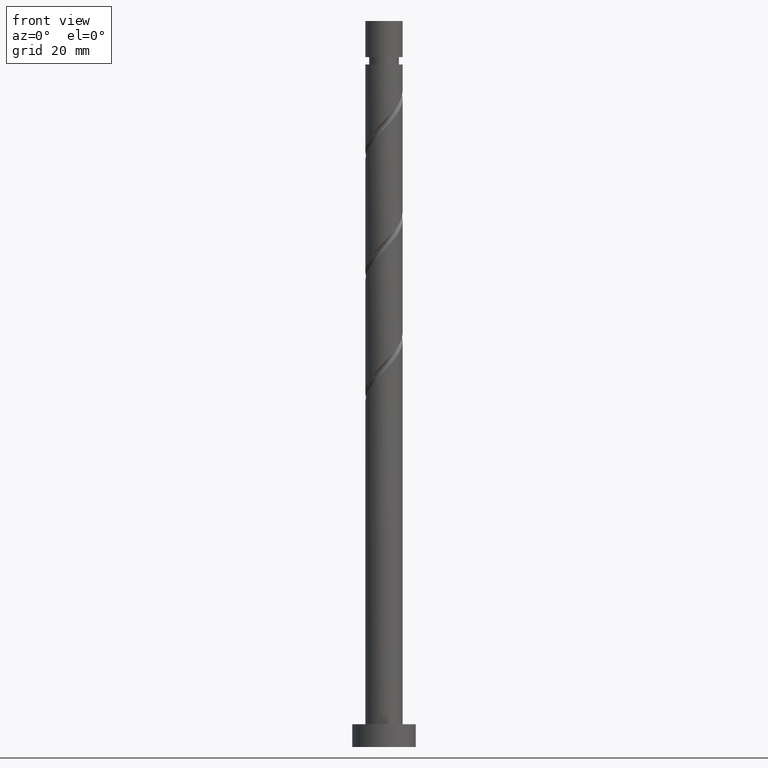
[diagram: clean part render]
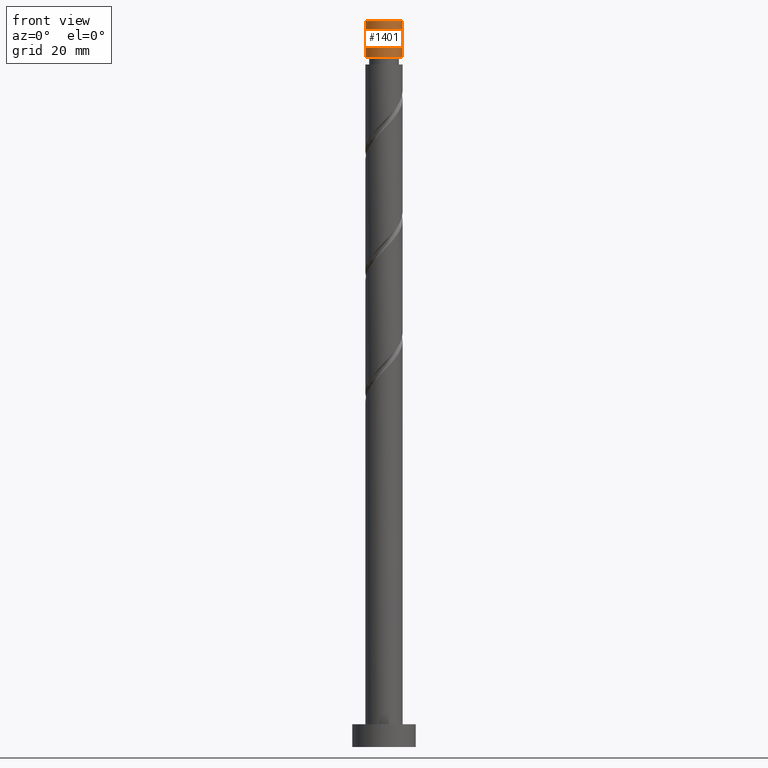
[diagram: same view with one face highlighted and labeled with its STEP entity id]
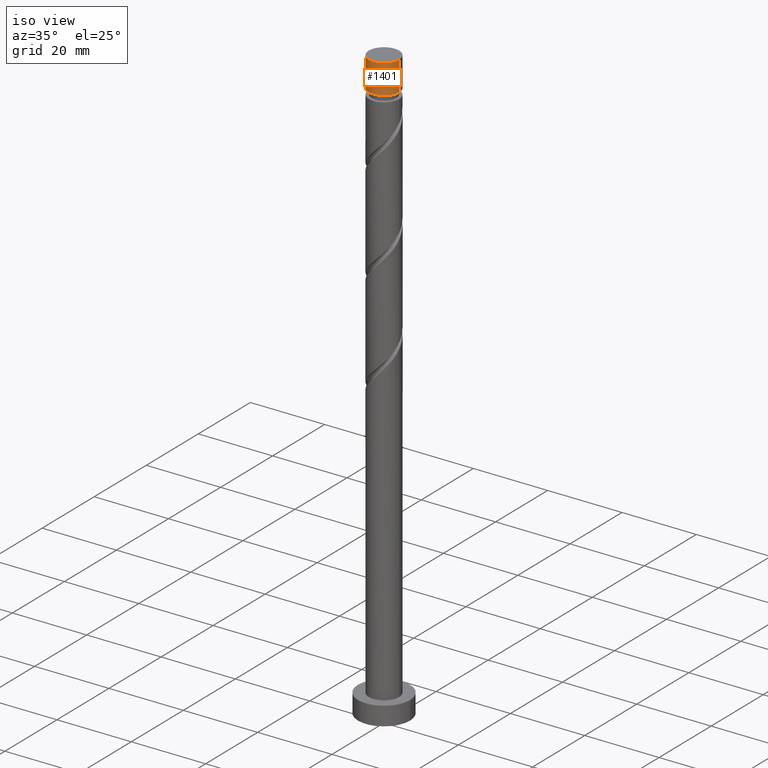
[diagram: same view with one face highlighted and labeled with its STEP entity id]
A machine part, front view. The second image highlights one B-rep face of the part: STEP entity #1401.
A second angle (iso view) of the same face is appended — the face is thin or edge-on in the first view.
In plain terms, the highlighted cylindrical surface (edge-blend (fillet) strip) has radius 4.1 mm, axis along (-0, -0, -1).
Its self-contained STEP definition (entity closure, byte-faithful):
#18 = AXIS2_PLACEMENT_3D ( 'NONE', #159, #1556, #1658 ) ;
#49 = CARTESIAN_POINT ( 'NONE',  ( 4.099999999999999645, 5.021051876504147385E-16, 160.0000000000000000 ) ) ;
#92 = EDGE_CURVE ( 'NONE', #117, #1421, #216, .T. ) ;
#97 = CIRCLE ( 'NONE', #253, 4.099999999999993427 ) ;
#117 = VERTEX_POINT ( 'NONE', #707 ) ;
#133 = DIRECTION ( 'NONE',  ( 1.000000000000000000, 0.000000000000000000, 0.000000000000000000 ) ) ;
#159 = CARTESIAN_POINT ( 'NONE',  ( 0.000000000000000000, 0.000000000000000000, 160.0000000000000000 ) ) ;
#216 = LINE ( 'NONE', #586, #232 ) ;
#232 = VECTOR ( 'NONE', #593, 1000.000000000000000 ) ;
#253 = AXIS2_PLACEMENT_3D ( 'NONE', #1606, #573, #1075 ) ;
#264 = CARTESIAN_POINT ( 'NONE',  ( 0.000000000000000000, 0.000000000000000000, 160.0000000000000000 ) ) ;
#315 = CARTESIAN_POINT ( 'NONE',  ( 4.099999999999999645, 5.021051876504147385E-16, 160.0000000000000000 ) ) ;
#389 = DIRECTION ( 'NONE',  ( 0.000000000000000000, 0.000000000000000000, 1.000000000000000000 ) ) ;
#395 = FACE_OUTER_BOUND ( 'NONE', #1411, .T. ) ;
#443 = AXIS2_PLACEMENT_3D ( 'NONE', #264, #389, #133 ) ;
#511 = EDGE_CURVE ( 'NONE', #905, #1421, #97, .T. ) ;
#573 = DIRECTION ( 'NONE',  ( -0.000000000000000000, -0.000000000000000000, -1.000000000000000000 ) ) ;
#586 = CARTESIAN_POINT ( 'NONE',  ( -4.099999999999999645, 0.000000000000000000, 160.0000000000000000 ) ) ;
#593 = DIRECTION ( 'NONE',  ( -0.000000000000000000, -0.000000000000000000, -1.000000000000000000 ) ) ;
#608 = CIRCLE ( 'NONE', #443, 4.099999999999999645 ) ;
#672 = CARTESIAN_POINT ( 'NONE',  ( -4.099999999999993427, 0.000000000000000000, 152.0482848682665633 ) ) ;
#693 = ORIENTED_EDGE ( 'NONE', *, *, #511, .F. ) ;
#707 = CARTESIAN_POINT ( 'NONE',  ( -4.099999999999999645, 0.000000000000000000, 160.0000000000000000 ) ) ;
#808 = DIRECTION ( 'NONE',  ( -0.000000000000000000, -0.000000000000000000, -1.000000000000000000 ) ) ;
#853 = EDGE_CURVE ( 'NONE', #117, #1095, #608, .T. ) ;
#905 = VERTEX_POINT ( 'NONE', #1565 ) ;
#939 = ORIENTED_EDGE ( 'NONE', *, *, #853, .F. ) ;
#1075 = DIRECTION ( 'NONE',  ( -1.000000000000000000, 0.000000000000000000, 0.000000000000000000 ) ) ;
#1095 = VERTEX_POINT ( 'NONE', #315 ) ;
#1123 = ORIENTED_EDGE ( 'NONE', *, *, #92, .T. ) ;
#1146 = EDGE_CURVE ( 'NONE', #1095, #905, #1216, .T. ) ;
#1216 = LINE ( 'NONE', #49, #1627 ) ;
#1401 = ADVANCED_FACE ( 'NONE', ( #395 ), #1547, .T. ) ;
#1411 = EDGE_LOOP ( 'NONE', ( #1536, #939, #1123, #693 ) ) ;
#1421 = VERTEX_POINT ( 'NONE', #672 ) ;
#1536 = ORIENTED_EDGE ( 'NONE', *, *, #1146, .F. ) ;
#1547 = CYLINDRICAL_SURFACE ( 'NONE', #18, 4.099999999999999645 ) ;
#1556 = DIRECTION ( 'NONE',  ( -0.000000000000000000, -0.000000000000000000, -1.000000000000000000 ) ) ;
#1565 = CARTESIAN_POINT ( 'NONE',  ( 4.099999999999993427, 5.021051876504144427E-16, 152.0482848682665633 ) ) ;
#1606 = CARTESIAN_POINT ( 'NONE',  ( 0.000000000000000000, 0.000000000000000000, 152.0482848682665633 ) ) ;
#1627 = VECTOR ( 'NONE', #808, 1000.000000000000000 ) ;
#1658 = DIRECTION ( 'NONE',  ( -1.000000000000000000, 0.000000000000000000, 0.000000000000000000 ) ) ;